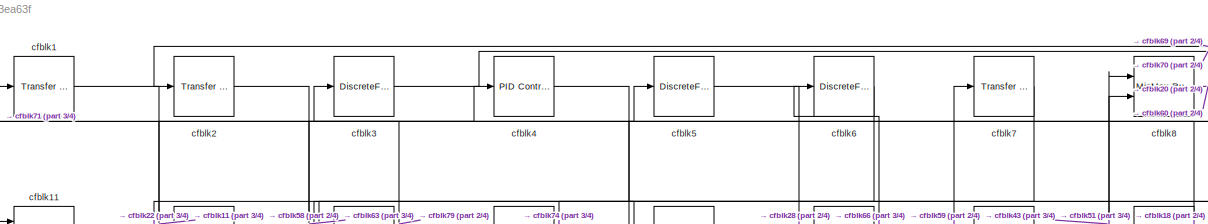
[diagram: root canvas - part 1/4, full width, top band]
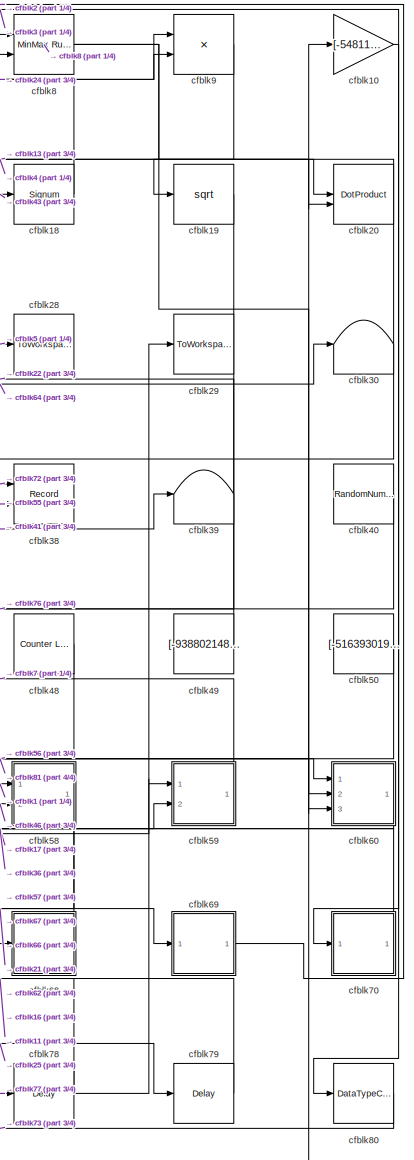
[diagram: root canvas - part 2/4, right side, full height]
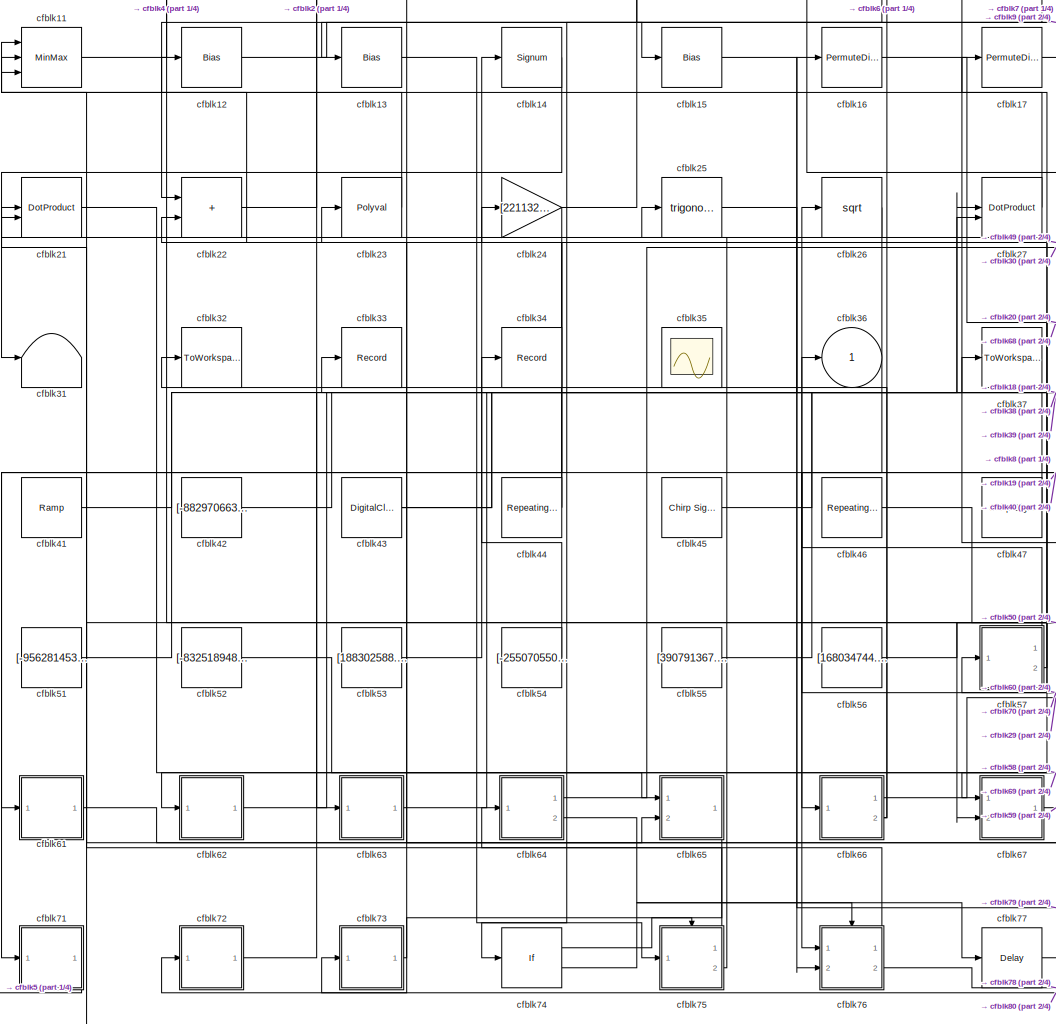
[diagram: root canvas - part 3/4, center side, full height]
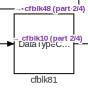
[diagram: root canvas - part 4/4, bottom left region]
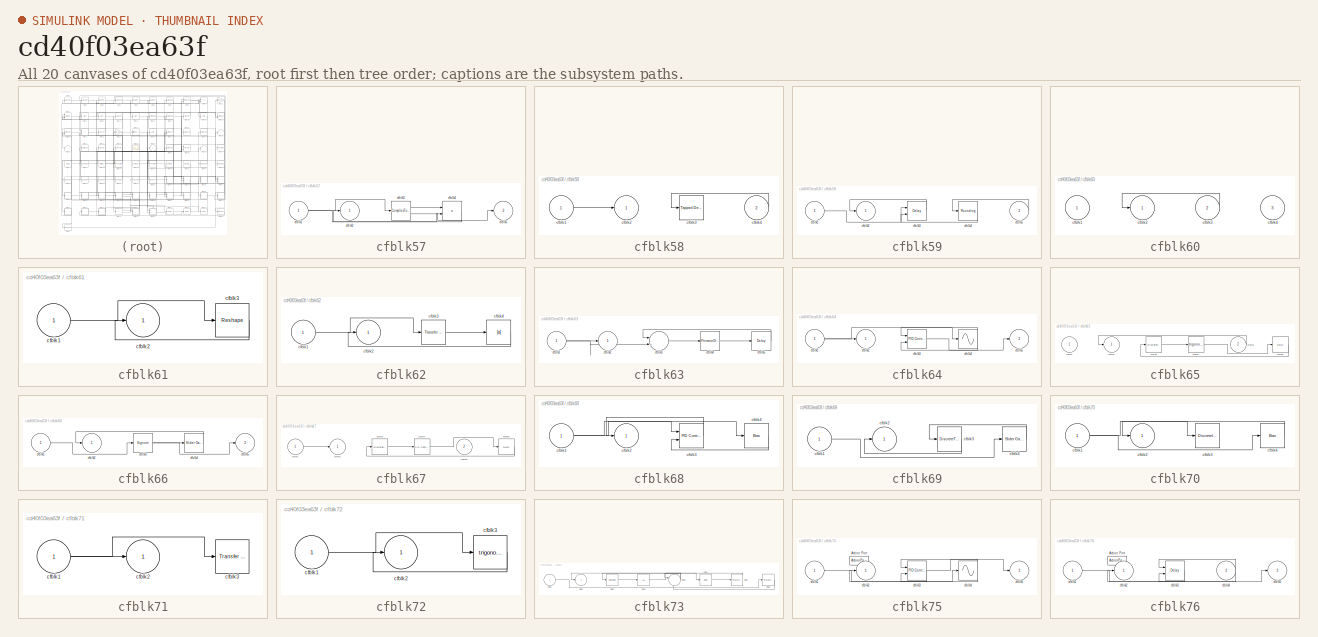
[diagram: thumbnail index - all 20 canvases of the model, root first then tree order]
MODEL slx_cd40f03ea63f
KIND model
CONFIG AbsTol = auto
CONFIG EnableMultiTasking = off
CONFIG FixedStep = auto
CONFIG MaxStep = auto
CONFIG MinStep = auto
CONFIG RelTol = 1e-3
CONFIG SampleTimeConstraint = Unconstrained
CONFIG SolverName = VariableStepAuto
CONFIG StartTime = 0.0
CONFIG StopTime = 10.0
BLOCK [Reference] cfblk1  REF=simulink/Discrete/Transfer Fcn
Lead or Lag
  Ports = [1, 1]
  SourceBlock = simulink/Discrete/Transfer Fcn\nLead or Lag
  SourceProductBaseCode = SL
  SourceType = Lead or Lag Compensator
BLOCK [Gain] cfblk10
  Gain = [-548110803.390169]
BLOCK [MinMax] cfblk11
  Inputs = 3
  Ports = [3, 1]
BLOCK [Bias] cfblk12
  Bias = [926052390.907693]
  SaturateOnIntegerOverflow = off
BLOCK [Bias] cfblk13
  Bias = [-601222667.324094]
  SaturateOnIntegerOverflow = off
BLOCK [Signum] cfblk14
BLOCK [Bias] cfblk15
  Bias = [59650284.180537]
  SaturateOnIntegerOverflow = off
BLOCK [PermuteDimensions] cfblk16
BLOCK [PermuteDimensions] cfblk17
BLOCK [Signum] cfblk18
BLOCK [Sqrt] cfblk19
BLOCK [Reference] cfblk2  REF=simulink/Discrete/Transfer Fcn
First Order
  Ports = [1, 1]
  SourceBlock = simulink/Discrete/Transfer Fcn\nFirst Order
  SourceProductBaseCode = SL
  SourceType = First Order Transfer Fcn
BLOCK [DotProduct] cfblk20
  OutDataTypeStr = Inherit: Inherit via internal rule
BLOCK [DotProduct] cfblk21
  OutDataTypeStr = Inherit: Inherit via internal rule
BLOCK [Sum] cfblk22
  IconShape = rectangular
  Ports = [2, 1]
BLOCK [Polyval] cfblk23
  Coefs = [ +2.081618890e-019, -1.441693666e-014, +4.719686976e-010, -8.536869453e-006, +1.621573104e-001, -8.087801117e+001 ]
BLOCK [Gain] cfblk24
  Gain = [221132448.788374]
BLOCK [Trigonometry] cfblk25
  Ports = [1, 1]
BLOCK [Sqrt] cfblk26
BLOCK [DotProduct] cfblk27
  OutDataTypeStr = Inherit: Inherit via internal rule
BLOCK [ToWorkspace] cfblk28
  FixptAsFi = on
  MaxDataPoints = inf
  Ports = [1]
  SampleTime = -1
  SaveFormat = Timeseries
  VariableName = fwxkuhy
BLOCK [ToWorkspace] cfblk29
  FixptAsFi = on
  MaxDataPoints = inf
  Ports = [1]
  SampleTime = -1
  SaveFormat = Timeseries
  VariableName = digqudz
BLOCK [DiscreteFilter] cfblk3
  InputPortMap = u0
  Ports = [1, 1]
  SampleTime = 1
BLOCK [Terminator] cfblk30
BLOCK [Terminator] cfblk31
BLOCK [ToWorkspace] cfblk32
  FixptAsFi = on
  MaxDataPoints = inf
  Ports = [1]
  SampleTime = -1
  SaveFormat = Timeseries
  VariableName = qpcgmnk
BLOCK [Record] cfblk33
  FileSettingsInternal = {"entries":[{"content":{"excelSettings":{"content":{},"type":"Streamout.ExcelSettings"}},"type":"Streamout.FileSettingStorage","uuid":"41f18550-f2ad-47ea-99ec-48c942e757fa"}],"packageUris":["http://schema.mathworks.com/mf0/streamout_blocks/R2020a"],"version":"1.0"}
  Ports = [1]
  SignalsInternal = {"entries":[{"content":{"signals":[{"content":{"blockPath":["sampleModel238/cfblk33"],"channel":[],"dimensions":[1],"domain":"sampleModel238/cfblk33","lineColor":"#fe330a","plots":[1],"port":1,"sid":[""],"signalID":9350,"signalName":"cfblk47"},"type":"RecordBlkView.Signal","uuid":"2afc591e-1678-492c-8e09-bf9217bd5d96"}]},"type":"RecordBlkView.InputSignals","uuid":"e08bb4b9-7f51-4635-b9c1-cb0521f2e...<+97ch>
  VisualizationBindings = {"sparklinesplugin":{"info":[{"bindingParametersList":[],"subplotID":1}]}}
BLOCK [Record] cfblk34
  FileSettingsInternal = {"entries":[{"content":{"excelSettings":{"content":{},"type":"Streamout.ExcelSettings"}},"type":"Streamout.FileSettingStorage","uuid":"6261f7b2-f917-4785-8c65-50d013674d6c"}],"packageUris":["http://schema.mathworks.com/mf0/streamout_blocks/R2020a"],"version":"1.0"}
  Ports = [1]
  SignalsInternal = {"entries":[{"content":{"signals":[{"content":{"blockPath":["sampleModel238/cfblk34"],"channel":[],"dimensions":[1],"domain":"sampleModel238/cfblk34","lineColor":"#22b573","plots":[1],"port":1,"sid":[""],"signalID":9354,"signalName":"cfblk53"},"type":"RecordBlkView.Signal","uuid":"bc29ae62-193a-4eda-9f3a-906a66134dd2"}]},"type":"RecordBlkView.InputSignals","uuid":"8432a58f-0b5a-4f8d-870f-ec1631fce...<+97ch>
  VisualizationBindings = {"sparklinesplugin":{"info":[{"bindingParametersList":[],"subplotID":1}]}}
BLOCK [Scope] cfblk35
  Floating = on
  NumInputPorts = 1
  Ports = []
BLOCK [Outport] cfblk36
BLOCK [ToWorkspace] cfblk37
  FixptAsFi = on
  MaxDataPoints = inf
  Ports = [1]
  SampleTime = -1
  SaveFormat = Timeseries
  VariableName = vjnrhwo
BLOCK [Record] cfblk38
  CompatibilityTag = XY
  FileSettingsInternal = {"entries":[{"content":{"excelSettings":{"content":{},"type":"Streamout.ExcelSettings"}},"type":"Streamout.FileSettingStorage","uuid":"a502b8dc-c0df-4652-994a-1a439744246b"}],"packageUris":["http://schema.mathworks.com/mf0/streamout_blocks/R2020a"],"version":"1.0"}
  Layout = [1 1]
  Ports = [2]
  SignalsInternal = {"entries":[{"content":{"signals":[{"content":{"blockPath":["sampleModel238/cfblk38"],"channel":[],"dimensions":[1],"domain":"sampleModel238/cfblk38","lineColor":"#a2142f","plots":[1],"port":1,"sid":[""],"signalID":9342,"signalName":"cfblk72"},"type":"RecordBlkView.Signal","uuid":"04acbba8-a16f-4b71-b375-54b6ae332823"},{"content":{"blockPath":["sampleModel238/cfblk38"],"channel":[],"dimensions":[1...<+383ch>
  VisualizationBindings = {"xyplotplugin":{"info":[{"series":[{"bindingParametersList":[{"parameter":"X-Axis","signalID":9342,"signalName":"cfblk72"},{"parameter":"Y-Axis","signalID":9346,"signalName":"cfblk55"}],"seriesID":28250}],"subplotID":1}]}}
BLOCK [Terminator] cfblk39
BLOCK [Reference] cfblk4  REF=slpidlib/PID Controller
  Ports = [1, 1]
  SourceBlock = slpidlib/PID Controller
  SourceProductBaseCode = SL
  SourceType = PID 1dof
BLOCK [RandomNumber] cfblk40
  Mean = [53769.109153]
  SampleTime = 0.1
  Seed = [625773112.000000]
  Variance = [62606.205044]
BLOCK [Reference] cfblk41  REF=simulink/Sources/Ramp
  Ports = [0, 1]
  SourceBlock = simulink/Sources/Ramp
  SourceProductBaseCode = SL
  SourceType = Ramp
BLOCK [Constant] cfblk42
  SampleTime = 1
  Value = [-882970663.174122]
BLOCK [DigitalClock] cfblk43
BLOCK [Reference] cfblk44  REF=simulink/Sources/Repeating
Sequence
  Ports = [0, 1]
  SourceBlock = simulink/Sources/Repeating\nSequence
  SourceProductBaseCode = SL
  SourceType = Repeating table
BLOCK [Reference] cfblk45  REF=simulink/Sources/Chirp Signal
  Ports = [0, 1]
  SourceBlock = simulink/Sources/Chirp Signal
  SourceProductBaseCode = SL
  SourceType = chirp
BLOCK [Reference] cfblk46  REF=simulink/Sources/Repeating
Sequence
Interpolated
  Ports = [0, 1]
  SourceBlock = simulink/Sources/Repeating\nSequence\nInterpolated
  SourceProductBaseCode = SL
  SourceType = Repeating Sequence Interpolated
BLOCK [Reference] cfblk47  REF=simulink/Sources/Chirp Signal
  Ports = [0, 1]
  SourceBlock = simulink/Sources/Chirp Signal
  SourceProductBaseCode = SL
  SourceType = chirp
BLOCK [Reference] cfblk48  REF=simulink/Sources/Counter
Limited
  Ports = [0, 1]
  SourceBlock = simulink/Sources/Counter\nLimited
  SourceProductBaseCode = SL
  SourceType = Counter Limited
BLOCK [Constant] cfblk49
  SampleTime = 1
  Value = [-938802148.150991]
BLOCK [DiscreteFir] cfblk5
  InputPortMap = u0
  OutputPortMap = o0
  Ports = [1, 1]
  SampleTime = 1
BLOCK [Constant] cfblk50
  SampleTime = 1
  Value = [-516393019.113753]
BLOCK [Constant] cfblk51
  SampleTime = 1
  Value = [-956281453.670207]
BLOCK [Constant] cfblk52
  SampleTime = 1
  Value = [-832518948.440605]
BLOCK [Constant] cfblk53
  SampleTime = 1
  Value = [188302588.470395]
BLOCK [Constant] cfblk54
  SampleTime = 1
  Value = [-255070550.676149]
BLOCK [Constant] cfblk55
  SampleTime = 1
  Value = [390791367.957330]
BLOCK [Constant] cfblk56
  SampleTime = 1
  Value = [168034744.085630]
BLOCK [SubSystem] cfblk57
  Ports = [1, 2]
  RequestExecContextInheritance = off
BLOCK [Inport] cfblk57/cfblk1
BLOCK [Outport] cfblk57/cfblk2
BLOCK [ComplexToMagnitudeAngle] cfblk57/cfblk3
  Ports = [1, 2]
BLOCK [Product] cfblk57/cfblk4
  Inputs = **
  Ports = [2, 1]
BLOCK [Outport] cfblk57/cfblk5
  Port = 2
BLOCK [SubSystem] cfblk58
  Ports = [2, 1]
  RequestExecContextInheritance = off
BLOCK [Inport] cfblk58/cfblk1
BLOCK [Outport] cfblk58/cfblk2
BLOCK [Reference] cfblk58/cfblk3  REF=simulink/Discrete/Tapped Delay
  Ports = [1, 1]
  SourceBlock = simulink/Discrete/Tapped Delay
  SourceProductBaseCode = SL
  SourceType = Tapped Delay Line
BLOCK [Inport] cfblk58/cfblk4
  Port = 2
BLOCK [SubSystem] cfblk59
  Ports = [2, 1]
  RequestExecContextInheritance = off
BLOCK [Inport] cfblk59/cfblk1
BLOCK [Outport] cfblk59/cfblk2
BLOCK [Delay] cfblk59/cfblk3
  DelayLengthSource = Input port
  InputPortMap = u0,p1
  Ports = [2, 1]
  SampleTime = 1
BLOCK [Rounding] cfblk59/cfblk4
BLOCK [Inport] cfblk59/cfblk5
  Port = 2
BLOCK [DiscreteFir] cfblk6
  InputPortMap = u0
  OutputPortMap = o0
  Ports = [1, 1]
  SampleTime = 1
BLOCK [SubSystem] cfblk60
  Ports = [3, 1]
  RequestExecContextInheritance = off
BLOCK [Inport] cfblk60/cfblk1
BLOCK [Outport] cfblk60/cfblk2
BLOCK [Inport] cfblk60/cfblk3
  Port = 2
BLOCK [Inport] cfblk60/cfblk4
  Port = 3
BLOCK [SubSystem] cfblk61
  Ports = [1, 1]
  RequestExecContextInheritance = off
BLOCK [Inport] cfblk61/cfblk1
BLOCK [Outport] cfblk61/cfblk2
BLOCK [Reshape] cfblk61/cfblk3
  Ports = [1, 1]
BLOCK [SubSystem] cfblk62
  Ports = [1, 1]
  RequestExecContextInheritance = off
BLOCK [Inport] cfblk62/cfblk1
BLOCK [Outport] cfblk62/cfblk2
BLOCK [Reference] cfblk62/cfblk3  REF=simulink/Discrete/Transfer Fcn
Real Zero
  Ports = [1, 1]
  SourceBlock = simulink/Discrete/Transfer Fcn\nReal Zero
  SourceProductBaseCode = SL
  SourceType = Transfer Fcn Real Zero
BLOCK [Abs] cfblk62/cfblk4
  SaturateOnIntegerOverflow = off
BLOCK [SubSystem] cfblk63
  Ports = [1, 1]
  RequestExecContextInheritance = off
BLOCK [Inport] cfblk63/cfblk1
BLOCK [Outport] cfblk63/cfblk2
BLOCK [Sum] cfblk63/cfblk3
  Inputs = |++
  Ports = [2, 1]
BLOCK [PermuteDimensions] cfblk63/cfblk4
BLOCK [Delay] cfblk63/cfblk5
  InputPortMap = u0
  Ports = [1, 1]
  SampleTime = 1
BLOCK [SubSystem] cfblk64
  Ports = [1, 2]
  RequestExecContextInheritance = off
BLOCK [Inport] cfblk64/cfblk1
BLOCK [Outport] cfblk64/cfblk2
BLOCK [Reference] cfblk64/cfblk3  REF=slpidlib/PID Controller (2DOF)
  Ports = [2, 1]
  SourceBlock = slpidlib/PID Controller (2DOF)
  SourceProductBaseCode = SL
  SourceType = PID 2dof
BLOCK [Sin] cfblk64/cfblk4
  Ports = [1, 1]
  SampleTime = 0
  TimeSource = Use external signal
BLOCK [Outport] cfblk64/cfblk5
  Port = 2
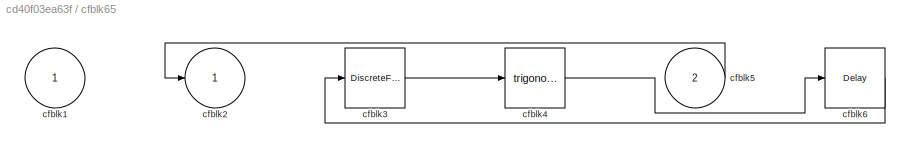
BLOCK [SubSystem] cfblk65
  Ports = [2, 1]
  RequestExecContextInheritance = off
BLOCK [Inport] cfblk65/cfblk1
BLOCK [Outport] cfblk65/cfblk2
BLOCK [DiscreteFir] cfblk65/cfblk3
  InputPortMap = u0
  OutputPortMap = o0
  Ports = [1, 1]
  SampleTime = 1
BLOCK [Trigonometry] cfblk65/cfblk4
  Ports = [1, 1]
BLOCK [Inport] cfblk65/cfblk5
  Port = 2
BLOCK [Delay] cfblk65/cfblk6
  InputPortMap = u0
  Ports = [1, 1]
  SampleTime = 1
BLOCK [SubSystem] cfblk66
  Ports = [1, 2]
  RequestExecContextInheritance = off
BLOCK [Inport] cfblk66/cfblk1
BLOCK [Outport] cfblk66/cfblk2
BLOCK [Signum] cfblk66/cfblk3
BLOCK [Reference] cfblk66/cfblk4  REF=simulink/Math
Operations/Slider
Gain
  Ports = [1, 1]
  SourceBlock = simulink/Math\nOperations/Slider\nGain
  SourceProductBaseCode = SL
  SourceType = Slider Gain
BLOCK [Outport] cfblk66/cfblk5
  Port = 2
BLOCK [SubSystem] cfblk67
  Ports = [2, 1]
  RequestExecContextInheritance = off
BLOCK [Inport] cfblk67/cfblk1
BLOCK [Outport] cfblk67/cfblk2
BLOCK [DiscreteFilter] cfblk67/cfblk3
  InputPortMap = u0
  Ports = [1, 1]
  SampleTime = 1
BLOCK [Reference] cfblk67/cfblk4  REF=slpidlib/PID Controller
  Ports = [1, 1]
  SourceBlock = slpidlib/PID Controller
  SourceProductBaseCode = SL
  SourceType = PID 1dof
BLOCK [Inport] cfblk67/cfblk5
  Port = 2
BLOCK [Delay] cfblk67/cfblk6
  InputPortMap = u0
  Ports = [1, 1]
  SampleTime = 1
BLOCK [SubSystem] cfblk68
  Ports = [1, 1]
  RequestExecContextInheritance = off
BLOCK [Inport] cfblk68/cfblk1
BLOCK [Outport] cfblk68/cfblk2
BLOCK [Reference] cfblk68/cfblk3  REF=slpidlib/PID Controller (2DOF)
  Ports = [2, 1]
  SourceBlock = slpidlib/PID Controller (2DOF)
  SourceProductBaseCode = SL
  SourceType = PID 2dof
BLOCK [Bias] cfblk68/cfblk4
  Bias = [-879782102.187868]
  SaturateOnIntegerOverflow = off
BLOCK [SubSystem] cfblk69
  Ports = [1, 1]
  RequestExecContextInheritance = off
BLOCK [Inport] cfblk69/cfblk1
BLOCK [Outport] cfblk69/cfblk2
BLOCK [DiscreteTransferFcn] cfblk69/cfblk3
  InputPortMap = u0
  Ports = [1, 1]
  SampleTime = 1
BLOCK [Reference] cfblk69/cfblk4  REF=simulink/Math
Operations/Slider
Gain
  Ports = [1, 1]
  SourceBlock = simulink/Math\nOperations/Slider\nGain
  SourceProductBaseCode = SL
  SourceType = Slider Gain
BLOCK [Reference] cfblk7  REF=simulink/Discrete/Transfer Fcn
First Order
  Ports = [1, 1]
  SourceBlock = simulink/Discrete/Transfer Fcn\nFirst Order
  SourceProductBaseCode = SL
  SourceType = First Order Transfer Fcn
BLOCK [SubSystem] cfblk70
  Ports = [1, 1]
  RequestExecContextInheritance = off
BLOCK [Inport] cfblk70/cfblk1
BLOCK [Outport] cfblk70/cfblk2
BLOCK [DiscreteIntegrator] cfblk70/cfblk3
  ICPrevOutput = DiscIntNeverNeededParam
  ICPrevScaledInput = DiscIntNeverNeededParam
  InitialConditionSetting = Auto
  Ports = [1, 1]
BLOCK [Bias] cfblk70/cfblk4
  Bias = [-147538646.258068]
  SaturateOnIntegerOverflow = off
BLOCK [SubSystem] cfblk71
  Ports = [1, 1]
  RequestExecContextInheritance = off
BLOCK [Inport] cfblk71/cfblk1
BLOCK [Outport] cfblk71/cfblk2
BLOCK [Reference] cfblk71/cfblk3  REF=simulink/Discrete/Transfer Fcn
Lead or Lag
  Ports = [1, 1]
  SourceBlock = simulink/Discrete/Transfer Fcn\nLead or Lag
  SourceProductBaseCode = SL
  SourceType = Lead or Lag Compensator
BLOCK [SubSystem] cfblk72
  Ports = [1, 1]
  RequestExecContextInheritance = off
BLOCK [Inport] cfblk72/cfblk1
BLOCK [Outport] cfblk72/cfblk2
BLOCK [Trigonometry] cfblk72/cfblk3
  Ports = [1, 1]
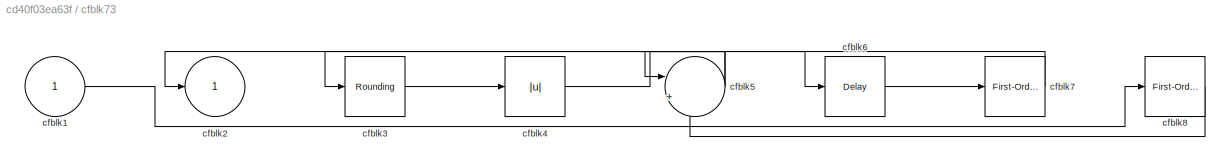
BLOCK [SubSystem] cfblk73
  Ports = [1, 1]
  RequestExecContextInheritance = off
BLOCK [Inport] cfblk73/cfblk1
BLOCK [Outport] cfblk73/cfblk2
BLOCK [Rounding] cfblk73/cfblk3
BLOCK [Abs] cfblk73/cfblk4
  SaturateOnIntegerOverflow = off
BLOCK [Sum] cfblk73/cfblk5
  Inputs = |++
  Ports = [2, 1]
BLOCK [Delay] cfblk73/cfblk6
  InputPortMap = u0
  Ports = [1, 1]
  SampleTime = 1
BLOCK [Reference] cfblk73/cfblk7  REF=simulink_need_slupdate/First-Order
Hold
  DisableCoverage = on
  Ports = [1, 1]
  SourceBlock = simulink_need_slupdate/First-Order\nHold
  SourceProductBaseCode = SL
  SourceType = First-Order Hold
BLOCK [Reference] cfblk73/cfblk8  REF=simulink_need_slupdate/First-Order
Hold
  DisableCoverage = on
  Ports = [1, 1]
  SourceBlock = simulink_need_slupdate/First-Order\nHold
  SourceProductBaseCode = SL
  SourceType = First-Order Hold
BLOCK [If] cfblk74
  IfExpression = u1 >= 0
  Ports = [1, 2]
  SampleTime = 1
BLOCK [SubSystem] cfblk75
  Ports = [1, 2, 0, 0, 0, 0, 0, 1]
  RequestExecContextInheritance = off
  TreatAsAtomicUnit = on
BLOCK [ActionPort] cfblk75/Action Port
  ActionPortLabel = if(u1 >= 0)
BLOCK [Inport] cfblk75/cfblk1
BLOCK [Outport] cfblk75/cfblk2
BLOCK [Reference] cfblk75/cfblk3  REF=slpidlib/PID Controller (2DOF)
  Ports = [2, 1]
  SourceBlock = slpidlib/PID Controller (2DOF)
  SourceProductBaseCode = SL
  SourceType = PID 2dof
BLOCK [Sin] cfblk75/cfblk4
  Ports = [1, 1]
  SampleTime = 0
  TimeSource = Use external signal
BLOCK [Outport] cfblk75/cfblk5
  Port = 2
BLOCK [SubSystem] cfblk76
  Ports = [2, 2, 0, 0, 0, 0, 0, 1]
  RequestExecContextInheritance = off
  TreatAsAtomicUnit = on
BLOCK [ActionPort] cfblk76/Action Port
  ActionPortLabel = else
BLOCK [Inport] cfblk76/cfblk1
BLOCK [Outport] cfblk76/cfblk2
BLOCK [Delay] cfblk76/cfblk3
  InputPortMap = u0,e6
  Ports = [2, 1]
  ShowEnablePort = on
BLOCK [Inport] cfblk76/cfblk4
  Port = 2
BLOCK [Outport] cfblk76/cfblk5
  Port = 2
BLOCK [Delay] cfblk77
  InputPortMap = u0
  Ports = [1, 1]
  SampleTime = 1
BLOCK [Delay] cfblk78
  InputPortMap = u0
  Ports = [1, 1]
  SampleTime = 1
BLOCK [Delay] cfblk79
  InputPortMap = u0
  Ports = [1, 1]
  SampleTime = 1
BLOCK [Reference] cfblk8  REF=simulink/Math
Operations/MinMax
Running
Resettable
  Ports = [2, 1]
  SourceBlock = simulink/Math\nOperations/MinMax\nRunning\nResettable
  SourceProductBaseCode = SL
  SourceType = MinMax Running Resettable
BLOCK [DataTypeConversion] cfblk80
  RndMeth = Floor
  SaturateOnIntegerOverflow = off
BLOCK [DataTypeConversion] cfblk81
  RndMeth = Floor
  SaturateOnIntegerOverflow = off
BLOCK [Product] cfblk9
  Ports = [2, 1]
LINE cfblk10:1 -> cfblk80:1
LINE cfblk11:1 -> cfblk4:1
LINE cfblk12:1 -> cfblk15:1
LINE cfblk13:1 -> cfblk75:1
LINE cfblk14:1 -> cfblk31:1
LINE cfblk15:1 -> cfblk76:2
LINE cfblk16:1 -> cfblk68:1
LINE cfblk17:1 -> cfblk60:1
LINE cfblk18:1 -> cfblk1:1
LINE cfblk19:1 -> cfblk76:1
LINE cfblk1:1 -> cfblk58:1
NET cfblk20:1 -> cfblk19:1, cfblk67:1
LINE cfblk21:1 -> cfblk69:1
LINE cfblk22:1 -> cfblk9:1
LINE cfblk23:1 -> cfblk11:2
NET cfblk24:1 -> cfblk61:1, cfblk9:2
LINE cfblk25:1 -> cfblk79:1
LINE cfblk26:1 -> cfblk71:1
LINE cfblk27:1 -> cfblk11:1
LINE cfblk2:1 -> cfblk63:1
LINE cfblk3:1 -> cfblk70:1
LINE cfblk40:1 -> cfblk66:1
LINE cfblk41:1 -> cfblk39:1
LINE cfblk42:1 -> cfblk16:1
NET cfblk43:1 -> cfblk18:1, cfblk8:2
NET cfblk44:1 -> cfblk12:1, cfblk24:1
LINE cfblk45:1 -> cfblk27:2
LINE cfblk46:1 -> cfblk58:2
LINE cfblk47:1 -> cfblk33:1
LINE cfblk48:1 -> cfblk81:1
LINE cfblk49:1 -> cfblk22:2
LINE cfblk4:1 -> cfblk20:2
LINE cfblk50:1 -> cfblk67:2
LINE cfblk51:1 -> cfblk8:1
LINE cfblk52:1 -> cfblk65:1
LINE cfblk53:1 -> cfblk34:1
LINE cfblk54:1 -> cfblk14:1
LINE cfblk55:1 -> cfblk38:2
LINE cfblk56:1 -> cfblk60:2
NET cfblk57/cfblk1:1 -> cfblk57/cfblk3:1, cfblk57/cfblk4:2
LINE cfblk57/cfblk3:1 -> cfblk57/cfblk4:1
LINE cfblk57/cfblk3:2 -> cfblk57/cfblk5:1
LINE cfblk57/cfblk4:1 -> cfblk57/cfblk2:1
LINE cfblk57:1 -> cfblk26:1
LINE cfblk57:2 -> cfblk25:1
LINE cfblk58/cfblk1:1 -> cfblk58/cfblk2:1
LINE cfblk58/cfblk4:1 -> cfblk58/cfblk3:1
LINE cfblk58:1 -> cfblk62:1
LINE cfblk59/cfblk1:1 -> cfblk59/cfblk3:1
LINE cfblk59/cfblk3:1 -> cfblk59/cfblk2:1
LINE cfblk59/cfblk4:1 -> cfblk59/cfblk3:2
LINE cfblk59/cfblk5:1 -> cfblk59/cfblk4:1
LINE cfblk59:1 -> cfblk7:1
LINE cfblk5:1 -> cfblk28:1
LINE cfblk60/cfblk3:1 -> cfblk60/cfblk2:1
LINE cfblk60:1 -> cfblk57:1
LINE cfblk61/cfblk1:1 -> cfblk61/cfblk3:1
LINE cfblk61/cfblk3:1 -> cfblk61/cfblk2:1
LINE cfblk61:1 -> cfblk65:2
LINE cfblk62/cfblk1:1 -> cfblk62/cfblk3:1
LINE cfblk62/cfblk3:1 -> cfblk62/cfblk4:1
LINE cfblk62/cfblk4:1 -> cfblk62/cfblk2:1
LINE cfblk62:1 -> cfblk27:1
NET cfblk63/cfblk1:1 -> cfblk63/cfblk2:1, cfblk63/cfblk3:2
LINE cfblk63/cfblk3:1 -> cfblk63/cfblk4:1
LINE cfblk63/cfblk4:1 -> cfblk63/cfblk5:1
LINE cfblk63/cfblk5:1 -> cfblk63/cfblk3:1
LINE cfblk63:1 -> cfblk37:1
NET cfblk64/cfblk1:1 -> cfblk64/cfblk2:1, cfblk64/cfblk4:1
LINE cfblk64/cfblk3:1 -> cfblk64/cfblk5:1
NET cfblk64/cfblk4:1 -> cfblk64/cfblk3:1, cfblk64/cfblk3:2
LINE cfblk64:1 -> cfblk30:1
LINE cfblk64:2 -> cfblk77:1
LINE cfblk65/cfblk3:1 -> cfblk65/cfblk4:1
LINE cfblk65/cfblk4:1 -> cfblk65/cfblk6:1
LINE cfblk65/cfblk5:1 -> cfblk65/cfblk2:1
LINE cfblk65/cfblk6:1 -> cfblk65/cfblk3:1
LINE cfblk65:1 -> cfblk72:1
LINE cfblk66/cfblk1:1 -> cfblk66/cfblk3:1
NET cfblk66/cfblk3:1 -> cfblk66/cfblk4:1, cfblk66/cfblk5:1
LINE cfblk66/cfblk4:1 -> cfblk66/cfblk2:1
LINE cfblk66:1 -> cfblk29:1
NET cfblk66:2 -> cfblk32:1, cfblk6:1
LINE cfblk67/cfblk1:1 -> cfblk67/cfblk2:1
LINE cfblk67/cfblk3:1 -> cfblk67/cfblk4:1
LINE cfblk67/cfblk4:1 -> cfblk67/cfblk6:1
LINE cfblk67/cfblk6:1 -> cfblk67/cfblk3:1
LINE cfblk67:1 -> cfblk59:2
NET cfblk68/cfblk1:1 -> cfblk68/cfblk3:1, cfblk68/cfblk4:1
LINE cfblk68/cfblk3:1 -> cfblk68/cfblk2:1
LINE cfblk68/cfblk4:1 -> cfblk68/cfblk3:2
LINE cfblk68:1 -> cfblk36:1
LINE cfblk69/cfblk1:1 -> cfblk69/cfblk4:1
LINE cfblk69/cfblk3:1 -> cfblk69/cfblk2:1
LINE cfblk69/cfblk4:1 -> cfblk69/cfblk3:1
LINE cfblk69:1 -> cfblk2:1
LINE cfblk6:1 -> cfblk74:1
NET cfblk70/cfblk1:1 -> cfblk70/cfblk3:1, cfblk70/cfblk4:1
LINE cfblk70/cfblk4:1 -> cfblk70/cfblk2:1
LINE cfblk70:1 -> cfblk17:1
NET cfblk71/cfblk1:1 -> cfblk71/cfblk2:1, cfblk71/cfblk3:1
LINE cfblk71:1 -> cfblk5:1
LINE cfblk72/cfblk1:1 -> cfblk72/cfblk3:1
LINE cfblk72/cfblk3:1 -> cfblk72/cfblk2:1
LINE cfblk72:1 -> cfblk38:1
LINE cfblk73/cfblk1:1 -> cfblk73/cfblk8:1
LINE cfblk73/cfblk3:1 -> cfblk73/cfblk4:1
LINE cfblk73/cfblk4:1 -> cfblk73/cfblk6:1
NET cfblk73/cfblk5:1 -> cfblk73/cfblk2:1, cfblk73/cfblk3:1
LINE cfblk73/cfblk6:1 -> cfblk73/cfblk7:1
LINE cfblk73/cfblk7:1 -> cfblk73/cfblk5:1
LINE cfblk73/cfblk8:1 -> cfblk73/cfblk5:2
LINE cfblk73:1 -> cfblk23:1
LINE cfblk74:1 -> cfblk75:ifaction
LINE cfblk74:2 -> cfblk76:ifaction
LINE cfblk75/cfblk1:1 -> cfblk75/cfblk4:1
NET cfblk75/cfblk3:1 -> cfblk75/cfblk2:1, cfblk75/cfblk5:1
NET cfblk75/cfblk4:1 -> cfblk75/cfblk3:1, cfblk75/cfblk3:2
LINE cfblk75:1 -> cfblk64:1
LINE cfblk75:2 -> cfblk21:2
LINE cfblk76/cfblk1:1 -> cfblk76/cfblk5:1
LINE cfblk76/cfblk3:1 -> cfblk76/cfblk2:1
NET cfblk76/cfblk4:1 -> cfblk76/cfblk3:1, cfblk76/cfblk3:2
LINE cfblk76:1 -> cfblk21:1
LINE cfblk76:2 -> cfblk78:1
LINE cfblk77:1 -> cfblk59:1
LINE cfblk78:1 -> cfblk11:3
LINE cfblk79:1 -> cfblk3:1
LINE cfblk7:1 -> cfblk22:1
LINE cfblk80:1 -> cfblk73:1
LINE cfblk81:1 -> cfblk10:1
NET cfblk8:1 -> cfblk20:1, cfblk60:3
LINE cfblk9:1 -> cfblk13:1
note: NET lines group one-source signal fan-out (src -> all destinations, sorted); 1:1 wires keep LINE
